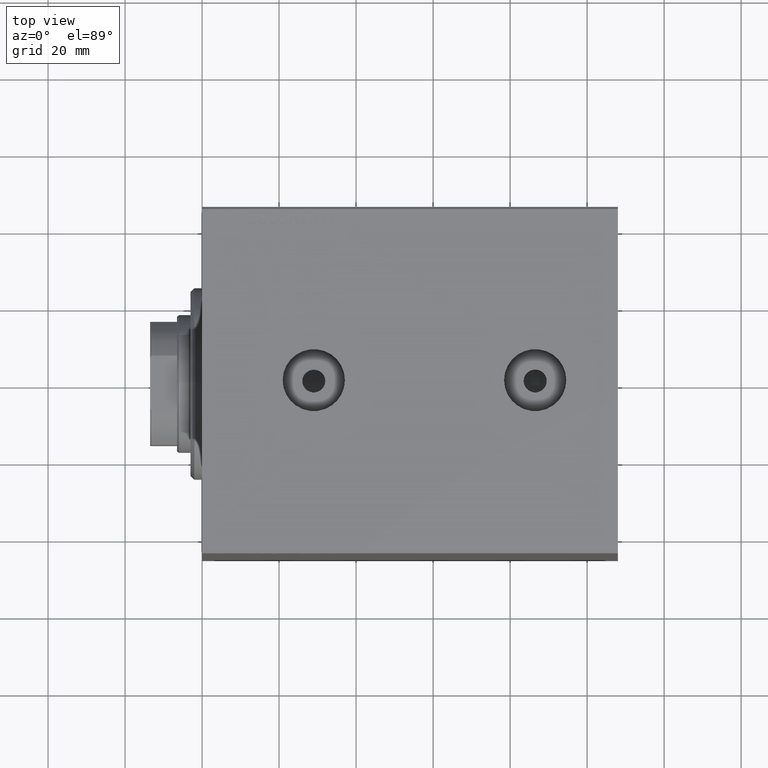
[diagram: clean part render]
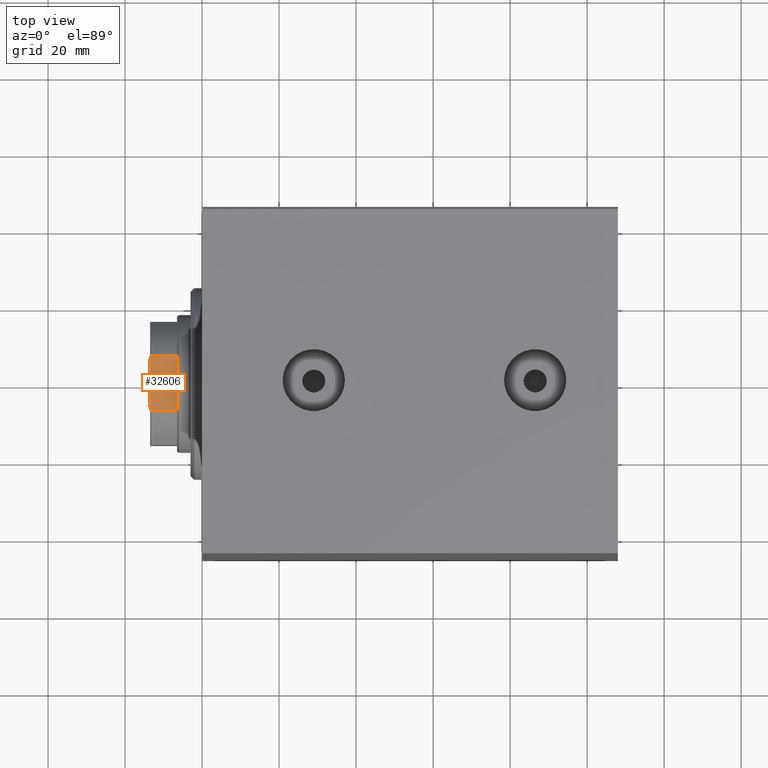
[diagram: same view with one face highlighted and labeled with its STEP entity id]
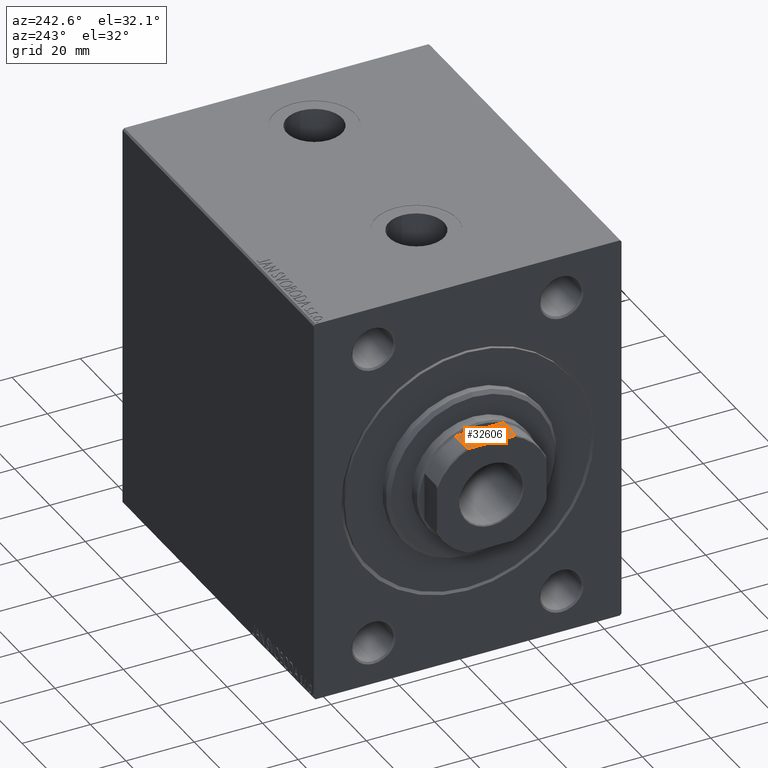
[diagram: same view with one face highlighted and labeled with its STEP entity id]
A machine part, top view. The second image highlights one B-rep face of the part: STEP entity #32606.
A second angle (auxiliary view) of the same face is appended — the face is thin or edge-on in the first view.
In plain terms, the highlighted planar face has unit normal (-0, -0, -1).
Its self-contained STEP definition (entity closure, byte-faithful):
#26 = ORIENTED_EDGE ( 'NONE', *, *, #42766, .T. ) ;
#212 = CARTESIAN_POINT ( 'NONE',  ( 16.00000000000000000, 16.00000000000000000, 104.0000000000000142 ) ) ;
#312 = LINE ( 'NONE', #6823, #22026 ) ;
#1364 = CARTESIAN_POINT ( 'NONE',  ( 16.00000000000000355, -6.311893535223839891, 104.0000000000000142 ) ) ;
#1559 = CARTESIAN_POINT ( 'NONE',  ( 15.99999999999999645, -7.088723439378925129, 103.7000000000000313 ) ) ;
#1689 = VECTOR ( 'NONE', #19285, 1000.000000000000000 ) ;
#2205 = CARTESIAN_POINT ( 'NONE',  ( 15.99999999999999645, -7.088723439378925129, -0.001000000000001000089 ) ) ;
#2290 = EDGE_LOOP ( 'NONE', ( #36167, #16890, #27229, #10122, #30207, #26 ) ) ;
#3042 = VECTOR ( 'NONE', #22622, 1000.000000000000000 ) ;
#3180 = CARTESIAN_POINT ( 'NONE',  ( 16.00000000000000000, -6.572519770966311903, 103.9043578457853130 ) ) ;
#4337 = CARTESIAN_POINT ( 'NONE',  ( 16.00000000000000000, 7.088723439378916247, 103.7000000000000313 ) ) ;
#5126 = LINE ( 'NONE', #2205, #3042 ) ;
#5954 = VERTEX_POINT ( 'NONE', #25180 ) ;
#6823 = CARTESIAN_POINT ( 'NONE',  ( 16.00000000000000000, 7.088723439378916247, -0.001000000000001000089 ) ) ;
#10121 = CARTESIAN_POINT ( 'NONE',  ( 15.99999999999999645, -7.088723439378925129, 103.7000000000000313 ) ) ;
#10122 = ORIENTED_EDGE ( 'NONE', *, *, #12967, .T. ) ;
#10399 = DIRECTION ( 'NONE',  ( -0.000000000000000000, -0.000000000000000000, 1.000000000000000000 ) ) ;
#11387 = DIRECTION ( 'NONE',  ( 1.084202172485504434E-16, -1.000000000000000000, 0.000000000000000000 ) ) ;
#12556 = CARTESIAN_POINT ( 'NONE',  ( 16.00000000000000000, 16.00000000000000000, 97.00000000000000000 ) ) ;
#12967 = EDGE_CURVE ( 'NONE', #17457, #38395, #25383, .T. ) ;
#14730 = LINE ( 'NONE', #18103, #29516 ) ;
#15103 = CARTESIAN_POINT ( 'NONE',  ( 16.00000000000000000, 7.088723439378916247, 97.00000000000002842 ) ) ;
#16284 = VERTEX_POINT ( 'NONE', #34623 ) ;
#16890 = ORIENTED_EDGE ( 'NONE', *, *, #21588, .T. ) ;
#17457 = VERTEX_POINT ( 'NONE', #1364 ) ;
#18103 = CARTESIAN_POINT ( 'NONE',  ( 16.00000000000000000, 16.00000000000000000, 104.0000000000000142 ) ) ;
#18889 = VERTEX_POINT ( 'NONE', #40495 ) ;
#19285 = DIRECTION ( 'NONE',  ( -1.084202172485504434E-16, 1.000000000000000000, -0.000000000000000000 ) ) ;
#19983 = CARTESIAN_POINT ( 'NONE',  ( 16.00000000000000355, -6.311893535223839891, 104.0000000000000142 ) ) ;
#21440 = EDGE_CURVE ( 'NONE', #40411, #18889, #312, .T. ) ;
#21588 = EDGE_CURVE ( 'NONE', #18889, #16284, #30404, .T. ) ;
#21820 = CARTESIAN_POINT ( 'NONE',  ( 16.00000000000000000, 6.311893535223851437, 104.0000000000000142 ) ) ;
#22026 = VECTOR ( 'NONE', #10399, 1000.000000000000000 ) ;
#22622 = DIRECTION ( 'NONE',  ( -0.000000000000000000, -0.000000000000000000, 1.000000000000000000 ) ) ;
#25180 = CARTESIAN_POINT ( 'NONE',  ( 15.99999999999999645, -7.088723439378925129, 97.00000000000002842 ) ) ;
#25198 = CARTESIAN_POINT ( 'NONE',  ( 16.00000000000000000, 6.831413176973288870, 103.8042286450461660 ) ) ;
#25383 = B_SPLINE_CURVE_WITH_KNOTS ( 'NONE', 3,
 ( #19983, #3180, #29856, #10121 ),
 .UNSPECIFIED., .F., .F.,
 ( 4, 4 ),
 ( 8.673617379884035472E-19, 0.0008327452791758024539 ),
 .UNSPECIFIED. ) ;
#27229 = ORIENTED_EDGE ( 'NONE', *, *, #37790, .F. ) ;
#29381 = LINE ( 'NONE', #12556, #1689 ) ;
#29516 = VECTOR ( 'NONE', #38695, 1000.000000000000000 ) ;
#29856 = CARTESIAN_POINT ( 'NONE',  ( 16.00000000000000355, -6.831413176973289758, 103.8042286450461660 ) ) ;
#30207 = ORIENTED_EDGE ( 'NONE', *, *, #44278, .F. ) ;
#30404 = B_SPLINE_CURVE_WITH_KNOTS ( 'NONE', 3,
 ( #4337, #25198, #38385, #21820 ),
 .UNSPECIFIED., .F., .F.,
 ( 4, 4 ),
 ( 0.000000000000000000, 0.0008327452791757846730 ),
 .UNSPECIFIED. ) ;
#30475 = FACE_OUTER_BOUND ( 'NONE', #2290, .T. ) ;
#31514 = AXIS2_PLACEMENT_3D ( 'NONE', #212, #42083, #11387 ) ;
#32606 = ADVANCED_FACE ( 'NONE', ( #30475 ), #44122, .F. ) ;
#34623 = CARTESIAN_POINT ( 'NONE',  ( 16.00000000000000000, 6.311893535223851437, 104.0000000000000142 ) ) ;
#36167 = ORIENTED_EDGE ( 'NONE', *, *, #21440, .T. ) ;
#37790 = EDGE_CURVE ( 'NONE', #17457, #16284, #14730, .T. ) ;
#38385 = CARTESIAN_POINT ( 'NONE',  ( 16.00000000000000000, 6.572519770966314567, 103.9043578457853130 ) ) ;
#38395 = VERTEX_POINT ( 'NONE', #1559 ) ;
#38695 = DIRECTION ( 'NONE',  ( -1.084202172485504434E-16, 1.000000000000000000, -0.000000000000000000 ) ) ;
#40411 = VERTEX_POINT ( 'NONE', #15103 ) ;
#40495 = CARTESIAN_POINT ( 'NONE',  ( 16.00000000000000000, 7.088723439378916247, 103.7000000000000313 ) ) ;
#42083 = DIRECTION ( 'NONE',  ( -1.000000000000000000, -1.084202172485504434E-16, 0.000000000000000000 ) ) ;
#42766 = EDGE_CURVE ( 'NONE', #5954, #40411, #29381, .T. ) ;
#44122 = PLANE ( 'NONE',  #31514 ) ;
#44278 = EDGE_CURVE ( 'NONE', #5954, #38395, #5126, .T. ) ;